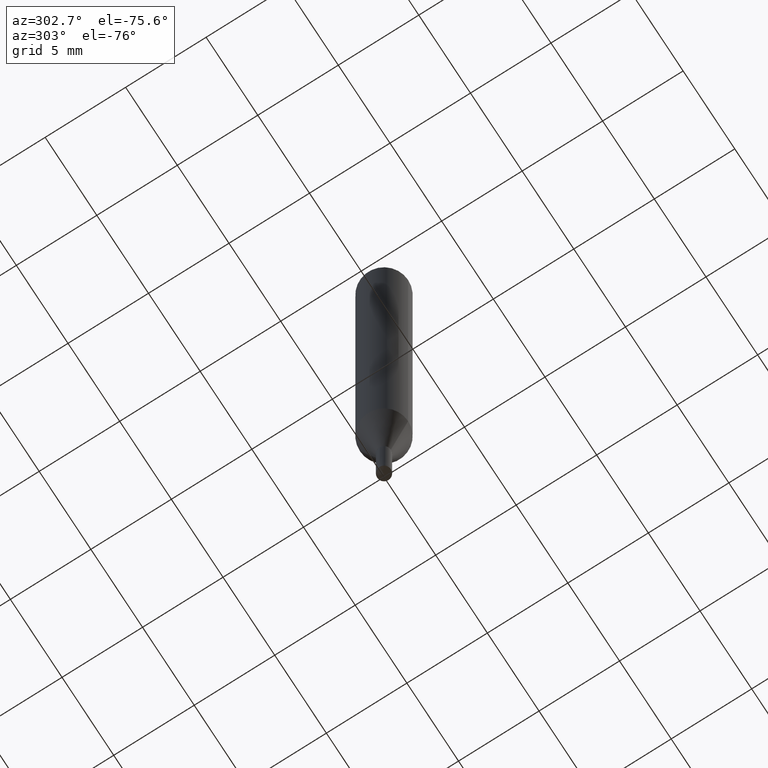
[diagram: clean part render]
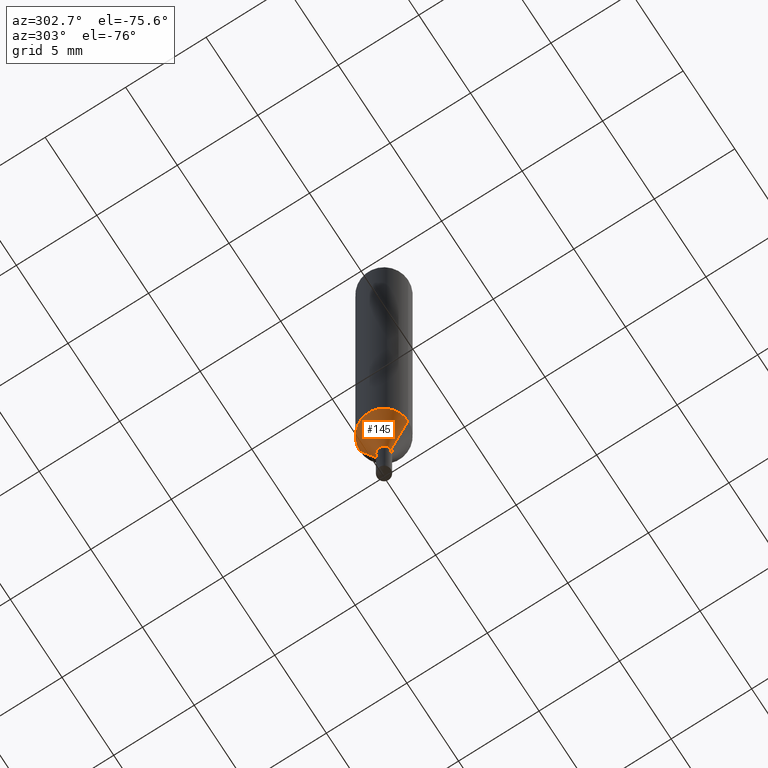
[diagram: same view with one face highlighted and labeled with its STEP entity id]
A machine part, auxiliary view. The second image highlights one B-rep face of the part: STEP entity #145.
In plain terms, the highlighted conical surface has half-angle 16.003 deg.
Its self-contained STEP definition (entity closure, byte-faithful):
#105=VERTEX_POINT('',#245);
#111=VERTEX_POINT('',#252);
#119=EDGE_CURVE('',#177,#105,#260,.T.);
#121=EDGE_CURVE('',#105,#183,#262,.T.);
#133=EDGE_CURVE('',#111,#183,#275,.T.);
#145=ADVANCED_FACE('',(#287),#288,.T.);
#147=EDGE_CURVE('',#111,#177,#290,.T.);
#177=VERTEX_POINT('',#322);
#183=VERTEX_POINT('',#329);
#245=CARTESIAN_POINT('',(0.0,1.5,-29.951));
#252=CARTESIAN_POINT('',(5.2045770037451E-017,-0.425,-33.6991339745962));
#260=CIRCLE('',#410,1.5);
#262=LINE('',#413,#414);
#275=CIRCLE('',#432,0.425);
#287=FACE_OUTER_BOUND('',#448,.T.);
#288=CONICAL_SURFACE('',#449,0.9625,0.279311816116806);
#290=LINE('',#452,#453);
#322=CARTESIAN_POINT('',(1.83690953073357E-016,-1.5,-29.951));
#329=CARTESIAN_POINT('',(0.0,0.425,-33.6991339745962));
#410=AXIS2_PLACEMENT_3D('',#582,#583,#584);
#413=CARTESIAN_POINT('',(-1.17868361555404E-016,0.9625,-31.8250669872981));
#414=VECTOR('',#585,1.0);
#432=AXIS2_PLACEMENT_3D('',#601,#602,#603);
#448=EDGE_LOOP('',(#616,#617,#618,#619));
#449=AXIS2_PLACEMENT_3D('',#620,#621,#622);
#452=CARTESIAN_POINT('',(1.17868361555404E-016,-0.9625,-31.8250669872981));
#453=VECTOR('',#623,1.0);
#582=CARTESIAN_POINT('',(0.0,0.0,-29.951));
#583=DIRECTION('',(0.0,0.0,-1.0));
#584=DIRECTION('',(0.0,1.0,0.0));
#585=DIRECTION('',(3.3761686941431E-017,-0.275694200312208,-0.961245394222626));
#601=CARTESIAN_POINT('',(0.0,0.0,-33.6991339745962));
#602=DIRECTION('',(0.0,0.0,-1.0));
#603=DIRECTION('',(0.0,1.0,0.0));
#616=ORIENTED_EDGE('',*,*,#121,.T.);
#617=ORIENTED_EDGE('',*,*,#133,.F.);
#618=ORIENTED_EDGE('',*,*,#147,.T.);
#619=ORIENTED_EDGE('',*,*,#119,.T.);
#620=CARTESIAN_POINT('',(0.0,0.0,-31.8250669872981));
#621=DIRECTION('',(-0.0,-0.0,1.0));
#622=DIRECTION('',(0.0,1.0,0.0));
#623=DIRECTION('',(3.3761686941431E-017,-0.275694200312208,0.961245394222626));